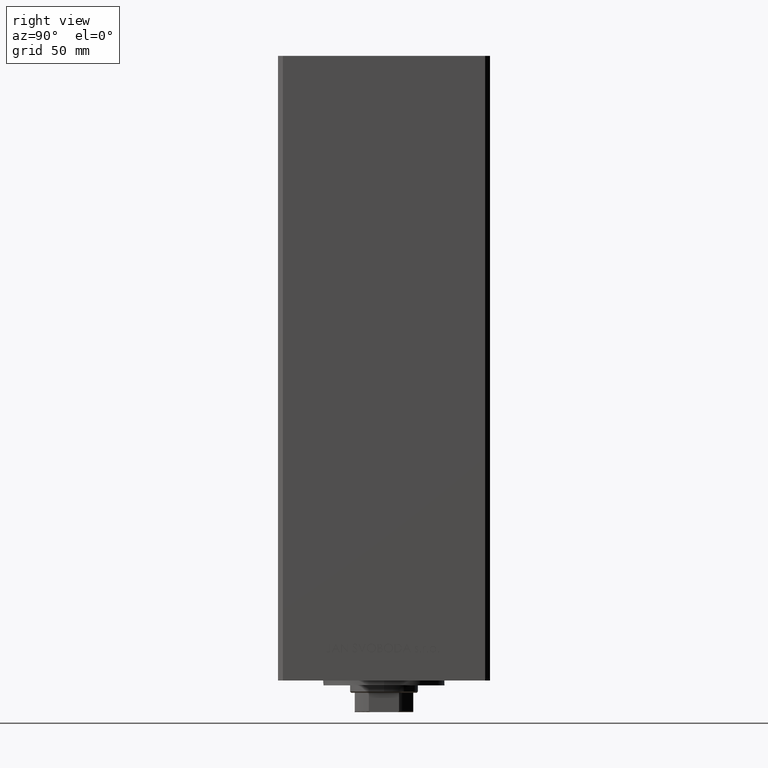
[diagram: clean part render]
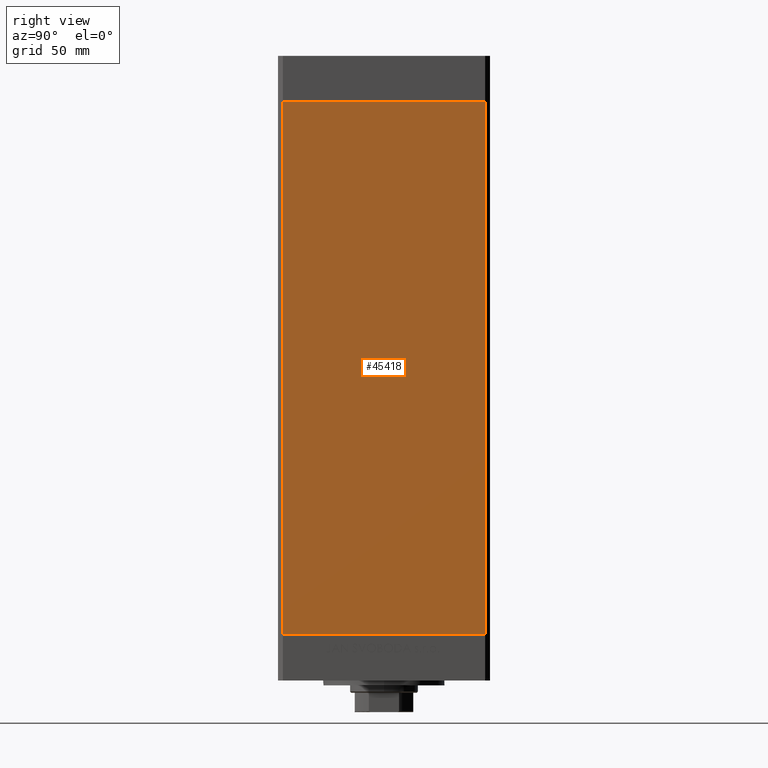
[diagram: same view with one face highlighted and labeled with its STEP entity id]
A machine part, right view. The second image highlights one B-rep face of the part: STEP entity #45418.
In plain terms, the highlighted planar face has unit normal (1, -0, 0).
Its self-contained STEP definition (entity closure, byte-faithful):
#586 = EDGE_CURVE ( 'NONE', #35863, #38096, #21062, .T. ) ;
#929 = CARTESIAN_POINT ( 'NONE',  ( 49.99999999999998579, -41.49999999999999289, 0.000000000000000000 ) ) ;
#1061 = DIRECTION ( 'NONE',  ( -3.344045254895050973E-16, -1.000000000000000000, 0.000000000000000000 ) ) ;
#4507 = CARTESIAN_POINT ( 'NONE',  ( 50.00000000000001421, 41.49999999999999289, 218.5000000000000000 ) ) ;
#4876 = CARTESIAN_POINT ( 'NONE',  ( 49.99999999999998579, -41.49999999999999289, 218.5000000000000000 ) ) ;
#7205 = CARTESIAN_POINT ( 'NONE',  ( 50.00000000000001421, 41.49999999999999289, 218.5000000000000000 ) ) ;
#7611 = FACE_OUTER_BOUND ( 'NONE', #15278, .T. ) ;
#8532 = ORIENTED_EDGE ( 'NONE', *, *, #13160, .T. ) ;
#9152 = CARTESIAN_POINT ( 'NONE',  ( 50.00000000000001421, 41.49999999999999289, 0.000000000000000000 ) ) ;
#10411 = DIRECTION ( 'NONE',  ( 3.344045254895050480E-16, 1.000000000000000000, 0.000000000000000000 ) ) ;
#11421 = CARTESIAN_POINT ( 'NONE',  ( 50.00000000000001421, 41.49999999999999289, 0.000000000000000000 ) ) ;
#13160 = EDGE_CURVE ( 'NONE', #18580, #25897, #21730, .T. ) ;
#14038 = DIRECTION ( 'NONE',  ( -0.000000000000000000, -0.000000000000000000, -1.000000000000000000 ) ) ;
#15278 = EDGE_LOOP ( 'NONE', ( #15517, #17942, #8532, #44077 ) ) ;
#15517 = ORIENTED_EDGE ( 'NONE', *, *, #586, .F. ) ;
#17942 = ORIENTED_EDGE ( 'NONE', *, *, #23609, .F. ) ;
#18386 = VECTOR ( 'NONE', #14038, 1000.000000000000000 ) ;
#18580 = VERTEX_POINT ( 'NONE', #46641 ) ;
#19231 = VECTOR ( 'NONE', #38926, 1000.000000000000000 ) ;
#19258 = PLANE ( 'NONE',  #32927 ) ;
#20341 = VECTOR ( 'NONE', #1061, 1000.000000000000000 ) ;
#21062 = LINE ( 'NONE', #9152, #20341 ) ;
#21651 = LINE ( 'NONE', #45445, #18386 ) ;
#21730 = LINE ( 'NONE', #7205, #23046 ) ;
#22665 = DIRECTION ( 'NONE',  ( -3.344045254895050973E-16, -1.000000000000000000, 0.000000000000000000 ) ) ;
#23046 = VECTOR ( 'NONE', #22665, 1000.000000000000000 ) ;
#23067 = CARTESIAN_POINT ( 'NONE',  ( 50.00000000000001421, 41.49999999999999289, 218.5000000000000000 ) ) ;
#23609 = EDGE_CURVE ( 'NONE', #18580, #35863, #35628, .T. ) ;
#25897 = VERTEX_POINT ( 'NONE', #4876 ) ;
#32927 = AXIS2_PLACEMENT_3D ( 'NONE', #23067, #34697, #10411 ) ;
#34697 = DIRECTION ( 'NONE',  ( 1.000000000000000000, -3.344045254895050480E-16, 0.000000000000000000 ) ) ;
#35628 = LINE ( 'NONE', #4507, #19231 ) ;
#35863 = VERTEX_POINT ( 'NONE', #11421 ) ;
#38096 = VERTEX_POINT ( 'NONE', #929 ) ;
#38926 = DIRECTION ( 'NONE',  ( -0.000000000000000000, -0.000000000000000000, -1.000000000000000000 ) ) ;
#44077 = ORIENTED_EDGE ( 'NONE', *, *, #47188, .T. ) ;
#45418 = ADVANCED_FACE ( 'NONE', ( #7611 ), #19258, .T. ) ;
#45445 = CARTESIAN_POINT ( 'NONE',  ( 49.99999999999998579, -41.49999999999999289, 218.5000000000000000 ) ) ;
#46641 = CARTESIAN_POINT ( 'NONE',  ( 50.00000000000001421, 41.49999999999999289, 218.5000000000000000 ) ) ;
#47188 = EDGE_CURVE ( 'NONE', #25897, #38096, #21651, .T. ) ;